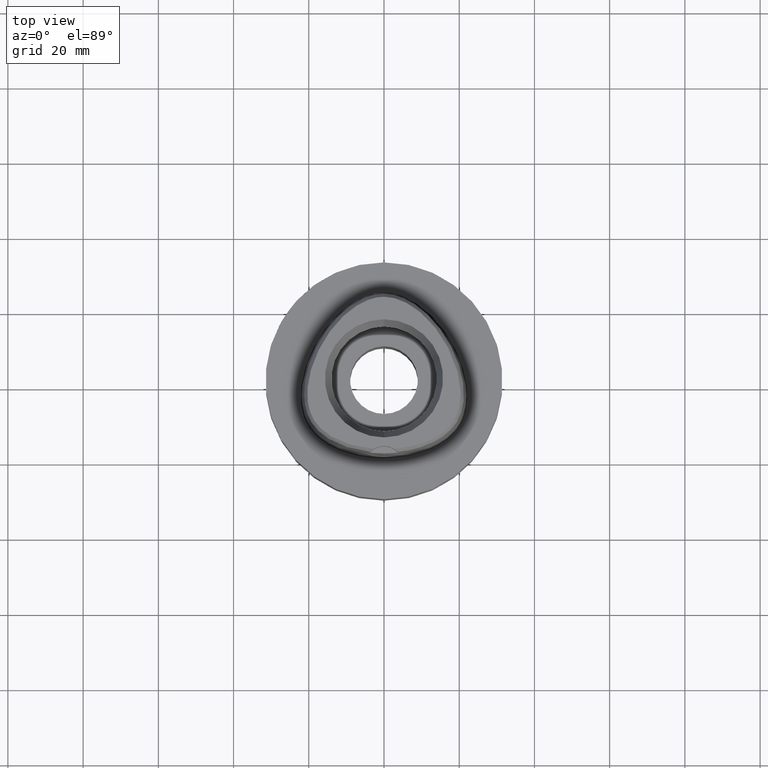
[diagram: clean part render]
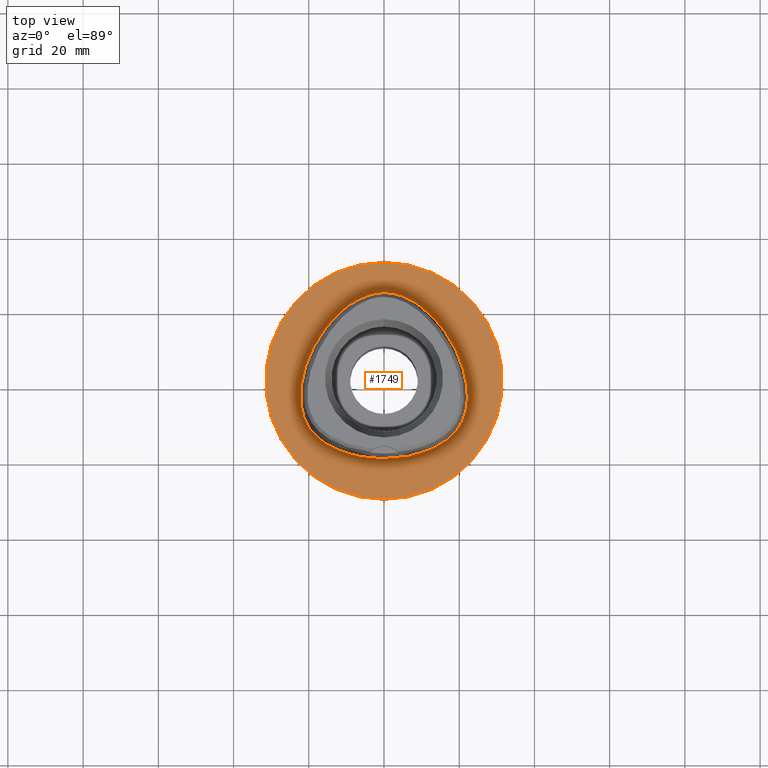
[diagram: same view with one face highlighted and labeled with its STEP entity id]
A machine part, top view. The second image highlights one B-rep face of the part: STEP entity #1749.
In plain terms, the highlighted planar face has unit normal (0, 0, -1).
Its self-contained STEP definition (entity closure, byte-faithful):
#141 = CARTESIAN_POINT ( 'NONE',  ( 4.563156939745000540E-11, 23.47499999999000053, 5.514107688971999147E-14 ) ) ;
#177 = CARTESIAN_POINT ( 'NONE',  ( -19.64947365559536507, -12.82525390403092125, 1.504619045729436305E-07 ) ) ;
#186 = CARTESIAN_POINT ( 'NONE',  ( 21.55524830979042150, -8.996025405396677499, -2.066734200662292964E-06 ) ) ;
#222 = CARTESIAN_POINT ( 'NONE',  ( -7.554100652393000659E-12, -20.67499999999999716, 5.806466418789999109E-14 ) ) ;
#311 = CARTESIAN_POINT ( 'NONE',  ( 0.0000000000000000000, 0.0000000000000000000, 1.243449787579999883E-14 ) ) ;
#313 = CARTESIAN_POINT ( 'NONE',  ( 0.0000000000000000000, 0.0000000000000000000, 1.243449787579999883E-14 ) ) ;
#461 = CARTESIAN_POINT ( 'NONE',  ( -20.74942740523708196, 4.657187498717557439, 1.504619045729436305E-07 ) ) ;
#527 = B_SPLINE_CURVE_WITH_KNOTS ( 'NONE', 3,
 ( #3528, #4271, #1237, #1314, #3502, #2377, #2757, #1654, #461, #2732, #3149, #4678, #1264, #2784, #4296, #177, #3598, #881, #3172, #3553, #4701, #2435, #3576 ),
 .UNSPECIFIED., .F., .F.,
 ( 4, 1, 1, 1, 1, 1, 1, 1, 1, 1, 1, 1, 1, 1, 1, 1, 1, 1, 1, 1, 4 ),
 ( 0.0000000000000000000, 0.04166666666736999758, 0.08333333333399001175, 0.1250000000005999923, 0.1666666666673000119, 0.2500000000004999889, 0.3333333333337000215, 0.4166666666670000296, 0.5000000000002999823, 0.5416666666668999985, 0.5833333333335000148, 0.6250000000001000311, 0.6458333333333999837, 0.6666666666667999674, 0.6875000000001000311, 0.7083333333333000637, 0.7500000000000000000, 0.7916666666667000474, 0.8333333333332000326, 0.9166666666664999852, 1.000000000000000000 ),
 .UNSPECIFIED. ) ;
#646 = CARTESIAN_POINT ( 'NONE',  ( 16.95889175801266191, -15.67838871266147649, -2.066734200662292964E-06 ) ) ;
#716 = AXIS2_PLACEMENT_3D ( 'NONE', #311, #3823, #1170 ) ;
#759 = EDGE_CURVE ( 'NONE', #3107, #1333, #527, .T. ) ;
#881 = CARTESIAN_POINT ( 'NONE',  ( -16.95889172360037023, -15.67838866890467564, 1.504619045729436305E-07 ) ) ;
#942 = ORIENTED_EDGE ( 'NONE', *, *, #2402, .F. ) ;
#974 = CARTESIAN_POINT ( 'NONE',  ( -7.554100652393000659E-12, -20.67499999999999716, 5.806466418789999109E-14 ) ) ;
#993 = CARTESIAN_POINT ( 'NONE',  ( 20.34961803040015482, -11.74885744774798724, -2.066734200662292964E-06 ) ) ;
#1042 = CARTESIAN_POINT ( 'NONE',  ( 6.341471028391895359, -20.29812505114589172, -2.066734200662292964E-06 ) ) ;
#1170 = DIRECTION ( 'NONE',  ( 0.0000000000000000000, 1.000000000000000000, 0.0000000000000000000 ) ) ;
#1191 = CARTESIAN_POINT ( 'NONE',  ( 0.8548392459695188794, 23.47500005167019665, -2.066734200662292964E-06 ) ) ;
#1194 = VERTEX_POINT ( 'NONE', #4768 ) ;
#1237 = CARTESIAN_POINT ( 'NONE',  ( -2.564517726183881408, 23.29328124629300234, 1.504619045729436305E-07 ) ) ;
#1264 = CARTESIAN_POINT ( 'NONE',  ( -21.55524825647565024, -8.996025389549746620, 1.504619045729436305E-07 ) ) ;
#1314 = CARTESIAN_POINT ( 'NONE',  ( -5.098437015879191847, 22.52602538712171309, 1.504619045729436305E-07 ) ) ;
#1333 = VERTEX_POINT ( 'NONE', #974 ) ;
#1428 = CARTESIAN_POINT ( 'NONE',  ( 11.23259758503158245, -18.89324223631525257, -2.066734200662292964E-06 ) ) ;
#1654 = CARTESIAN_POINT ( 'NONE',  ( -18.06826688199668496, 10.43171874811289790, 1.504619045729436305E-07 ) ) ;
#1734 = CARTESIAN_POINT ( 'NONE',  ( 14.67337966984966258, -17.21410160753009677, -2.066734200662292964E-06 ) ) ;
#1749 = ADVANCED_FACE ( 'NONE', ( #2040, #2719 ), #3513, .F. ) ;
#1755 = CARTESIAN_POINT ( 'NONE',  ( 18.06826693023942809, 10.43171877596624064, -2.066734200662292964E-06 ) ) ;
#1803 = CARTESIAN_POINT ( 'NONE',  ( 22.24453913037089237, -4.100468749696545956, -2.066734200662292964E-06 ) ) ;
#1854 = DIRECTION ( 'NONE',  ( 0.0000000000000000000, 0.0000000000000000000, -1.000000000000000000 ) ) ;
#2040 = FACE_OUTER_BOUND ( 'NONE', #3085, .T. ) ;
#2084 = CARTESIAN_POINT ( 'NONE',  ( 20.93173256939925153, -10.60431642729400714, -2.066734200662292964E-06 ) ) ;
#2132 = CARTESIAN_POINT ( 'NONE',  ( 14.40795642928249976, 15.64093753352469385, -2.066734200662292964E-06 ) ) ;
#2185 = CARTESIAN_POINT ( 'NONE',  ( 18.56841068905494652, -14.16937991845690448, -2.066734200662292964E-06 ) ) ;
#2216 = EDGE_LOOP ( 'NONE', ( #4132, #3738 ) ) ;
#2275 = CARTESIAN_POINT ( 'NONE',  ( 4.563156939745000540E-11, 23.47499999999000053, 5.514107688971999147E-14 ) ) ;
#2311 = CARTESIAN_POINT ( 'NONE',  ( 0.0000000000000000000, 0.0000000000000000000, 0.0000000000000000000 ) ) ;
#2366 = ORIENTED_EDGE ( 'NONE', *, *, #3960, .F. ) ;
#2377 = CARTESIAN_POINT ( 'NONE',  ( -10.74572890816407700, 19.17433593460787122, 1.504619045729436305E-07 ) ) ;
#2402 = EDGE_CURVE ( 'NONE', #1194, #3040, #3756, .T. ) ;
#2435 = CARTESIAN_POINT ( 'NONE',  ( -2.113823672840903445, -20.67499999624136109, 1.504619045729436305E-07 ) ) ;
#2517 = CARTESIAN_POINT ( 'NONE',  ( 22.05732879458533091, -6.847636726131219653, -2.066734200662292964E-06 ) ) ;
#2719 = FACE_BOUND ( 'NONE', #2216, .T. ) ;
#2732 = CARTESIAN_POINT ( 'NONE',  ( -21.97832647413867235, -0.2810937506581301926, 1.504619045729436305E-07 ) ) ;
#2757 = CARTESIAN_POINT ( 'NONE',  ( -14.40795638669283107, 15.64093749755124740, 1.504619045729436305E-07 ) ) ;
#2784 = CARTESIAN_POINT ( 'NONE',  ( -20.93173251867508711, -10.60431640472661208, 1.504619045729436305E-07 ) ) ;
#2880 = AXIS2_PLACEMENT_3D ( 'NONE', #2311, #3837, #3934 ) ;
#3011 = B_SPLINE_CURVE_WITH_KNOTS ( 'NONE', 3,
 ( #222, #4100, #1042, #1428, #1734, #646, #2185, #4402, #993, #2084, #186, #2517, #1803, #3331, #4031, #1755, #2132, #3656, #3278, #4811, #3799, #1191, #2275 ),
 .UNSPECIFIED., .F., .F.,
 ( 4, 1, 1, 1, 1, 1, 1, 1, 1, 1, 1, 1, 1, 1, 1, 1, 1, 1, 1, 1, 4 ),
 ( 0.0000000000000000000, 0.08333333333339000559, 0.1666666666667000196, 0.2083333333333000081, 0.2500000000000000000, 0.2916666666666999919, 0.3125000000000000000, 0.3333333333333000081, 0.3541666666666000163, 0.3749999999998999689, 0.4166666666666000163, 0.4583333333332000326, 0.4999999999998999689, 0.5833333333331000015, 0.6666666666664999852, 0.7499999999998000488, 0.8333333333329999704, 0.8749999999997000177, 0.9166666666664000651, 0.9583333333329999704, 1.000000000000000000 ),
 .UNSPECIFIED. ) ;
#3040 = VERTEX_POINT ( 'NONE', #3087 ) ;
#3046 = AXIS2_PLACEMENT_3D ( 'NONE', #313, #1854, #4885 ) ;
#3085 = EDGE_LOOP ( 'NONE', ( #2366, #942 ) ) ;
#3087 = CARTESIAN_POINT ( 'NONE',  ( 0.0000000000000000000, 31.50000000000000000, 1.243449787579999883E-14 ) ) ;
#3107 = VERTEX_POINT ( 'NONE', #141 ) ;
#3149 = CARTESIAN_POINT ( 'NONE',  ( -22.24453907477161252, -4.100468750021825315, 1.504619045729436305E-07 ) ) ;
#3172 = CARTESIAN_POINT ( 'NONE',  ( -14.67337964233091263, -17.21410155921854823, 1.504619045729436305E-07 ) ) ;
#3278 = CARTESIAN_POINT ( 'NONE',  ( 7.571159460527183249, 21.31457035722905502, -2.066734200662292964E-06 ) ) ;
#3298 = CIRCLE ( 'NONE', #716, 31.50000000000000000 ) ;
#3331 = CARTESIAN_POINT ( 'NONE',  ( 21.97832652902406636, -0.2810937409606900084, -2.066734200662292964E-06 ) ) ;
#3502 = CARTESIAN_POINT ( 'NONE',  ( -7.571159432445910831, 21.31457030924179108, 1.504619045729436305E-07 ) ) ;
#3513 = PLANE ( 'NONE',  #2880 ) ;
#3528 = CARTESIAN_POINT ( 'NONE',  ( 4.563156939745000540E-11, 23.47499999999000053, 5.514107688971999147E-14 ) ) ;
#3553 = CARTESIAN_POINT ( 'NONE',  ( -11.23259756598307746, -18.89324218395305266, 1.504619045729436305E-07 ) ) ;
#3576 = CARTESIAN_POINT ( 'NONE',  ( -7.554100652393000659E-12, -20.67499999999999716, 5.806466418789999109E-14 ) ) ;
#3598 = CARTESIAN_POINT ( 'NONE',  ( -18.56841064868196511, -14.16937988021922834, 1.504619045729436305E-07 ) ) ;
#3656 = CARTESIAN_POINT ( 'NONE',  ( 10.74572894399159040, 19.17433597728068406, -2.066734200662292964E-06 ) ) ;
#3738 = ORIENTED_EDGE ( 'NONE', *, *, #3959, .F. ) ;
#3756 = CIRCLE ( 'NONE', #3046, 31.50000000000000000 ) ;
#3799 = CARTESIAN_POINT ( 'NONE',  ( 2.564517737576382572, 23.29328130087780835, -2.066734200662292964E-06 ) ) ;
#3823 = DIRECTION ( 'NONE',  ( 0.0000000000000000000, 0.0000000000000000000, -1.000000000000000000 ) ) ;
#3837 = DIRECTION ( 'NONE',  ( 0.0000000000000000000, 0.0000000000000000000, -1.000000000000000000 ) ) ;
#3934 = DIRECTION ( 'NONE',  ( 0.0000000000000000000, -1.000000000000000000, 0.0000000000000000000 ) ) ;
#3959 = EDGE_CURVE ( 'NONE', #1333, #3107, #3011, .T. ) ;
#3960 = EDGE_CURVE ( 'NONE', #3040, #1194, #3298, .T. ) ;
#4031 = CARTESIAN_POINT ( 'NONE',  ( 20.74942745768056795, 4.657187517616106831, -2.066734200662292964E-06 ) ) ;
#4100 = CARTESIAN_POINT ( 'NONE',  ( 2.113823676138480767, -20.67500005166150601, -2.066734200662292964E-06 ) ) ;
#4132 = ORIENTED_EDGE ( 'NONE', *, *, #759, .F. ) ;
#4271 = CARTESIAN_POINT ( 'NONE',  ( -0.8548392420371653255, 23.47499999624032085, 1.504619045729436305E-07 ) ) ;
#4296 = CARTESIAN_POINT ( 'NONE',  ( -20.34961798230877150, -11.74885741998214073, 1.504619045729436305E-07 ) ) ;
#4402 = CARTESIAN_POINT ( 'NONE',  ( 19.64947370050258613, -12.82525393668216651, -2.066734200662292964E-06 ) ) ;
#4678 = CARTESIAN_POINT ( 'NONE',  ( -22.05732873948249306, -6.847636718212593898, 1.504619045729436305E-07 ) ) ;
#4701 = CARTESIAN_POINT ( 'NONE',  ( -6.341471018543137106, -20.29812499627781719, 1.504619045729436305E-07 ) ) ;
#4768 = CARTESIAN_POINT ( 'NONE',  ( 0.0000000000000000000, -31.50000000000000000, 1.243449787579999883E-14 ) ) ;
#4811 = CARTESIAN_POINT ( 'NONE',  ( 5.098437036568777003, 22.52602543879534025, -2.066734200662292964E-06 ) ) ;
#4885 = DIRECTION ( 'NONE',  ( 0.0000000000000000000, -1.000000000000000000, 0.0000000000000000000 ) ) ;